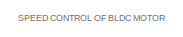
[diagram: root canvas - part 1/3, top left region]
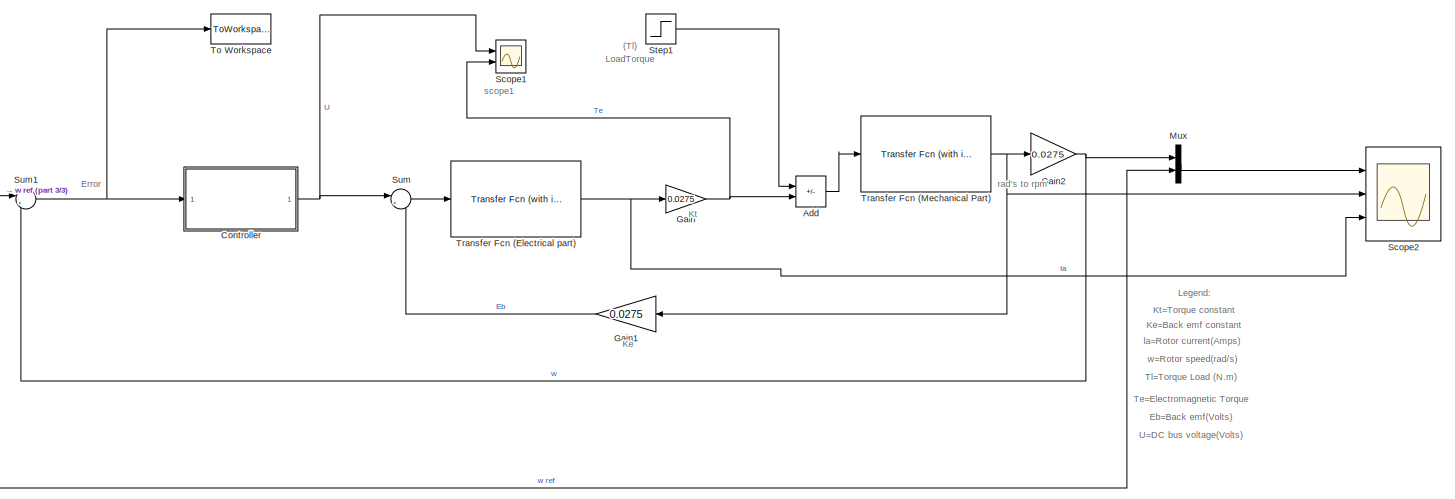
[diagram: root canvas - part 2/3, most of the canvas]
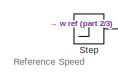
[diagram: root canvas - part 3/3, middle left region]
MODEL slx_33fdfa8906aa
KIND model
CONFIG AbsTol = auto
CONFIG EnableMultiTasking = off
CONFIG FixedStep = auto
CONFIG MaxStep = auto
CONFIG MinStep = auto
CONFIG RelTol = 1e-3
CONFIG SampleTimeConstraint = Unconstrained
CONFIG Solver = VariableStepAuto
CONFIG SolverName = VariableStepAuto
CONFIG StartTime = 0.0
CONFIG StopTime = 20.0
BLOCK [Sum] Add
  IconShape = rectangular
  Inputs = -+
  Ports = [2, 1]
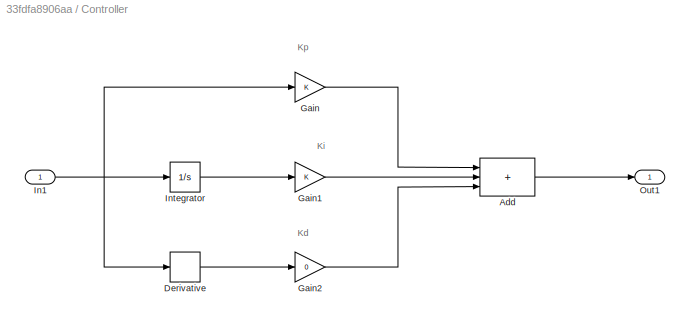
BLOCK [SubSystem] Controller
  Ports = [1, 1]
  RequestExecContextInheritance = off
BLOCK [Sum] Controller/Add
  IconShape = rectangular
  Inputs = +++
  Ports = [3, 1]
BLOCK [Derivative] Controller/Derivative
BLOCK [Gain] Controller/Gain
BLOCK [Gain] Controller/Gain1
BLOCK [Gain] Controller/Gain2
  Gain = 0
BLOCK [Inport] Controller/In1
BLOCK [Integrator] Controller/Integrator
  Ports = [1, 1]
BLOCK [Outport] Controller/Out1
BLOCK [Gain] Gain
  Gain = 0.0275
BLOCK [Gain] Gain1
  Gain = 0.0275
BLOCK [Gain] Gain2
  Gain = 0.0275
BLOCK [Mux] Mux
  DisplayOption = bar
  Inputs = 2
  Ports = [2, 1]
BLOCK [Scope] Scope1
  Floating = off
  NumInputPorts = 2
  Ports = [2]
  ScopeSpecificationString = Simulink.scopes.TimeScopeBlockCfg('CurrentConfiguration', extmgr.ConfigurationSet(extmgr.Configuration('Core','General UI',true),extmgr.Configuration('Core','Source UI',true),extmgr.Configuration('Sources','WiredSimulink',true,'DataLoggingVariableName','ScopeData1'),extmgr.Configuration('Visuals','Time Domain',true,'SerializedDisplays',{struct('MinYLimReal','-397.95929','MaxYLimReal','1246.47443',...<+2171ch>
BLOCK [Scope] Scope2
  Floating = off
  NumInputPorts = 3
  Ports = [3]
  ScopeSpecificationString = Simulink.scopes.TimeScopeBlockCfg('CurrentConfiguration', extmgr.ConfigurationSet(extmgr.Configuration('Core','General UI',true),extmgr.Configuration('Core','Source UI',true),extmgr.Configuration('Sources','WiredSimulink',true,'DataLoggingVariableName','ScopeData1'),extmgr.Configuration('Visuals','Time Domain',true,'SerializedDisplays',{struct('MinYLimReal','30.69248','MaxYLimReal','1693.17211','Y...<+2845ch>
BLOCK [Step] Step
  After = 1500
  SampleTime = 0
BLOCK [Step] Step1
  After = 10
  SampleTime = 0
  Time = 0.1
BLOCK [Sum] Sum
  Inputs = |+-
  Ports = [2, 1]
BLOCK [Sum] Sum1
  Inputs = |+-
  Ports = [2, 1]
BLOCK [ToWorkspace] To Workspace
  MaxDataPoints = inf
  Ports = [1]
  SampleTime = -1
  SaveFormat = Timeseries
  VariableName = simout
BLOCK [Reference] Transfer Fcn (Electrical part)  REF=simulink_extras/Additional
Linear/Transfer Fcn
(with initial states)
  Ports = [1, 1]
  SourceBlock = simulink_extras/Additional\nLinear/Transfer Fcn\n(with initial states)
  SourceProductBaseCode = SL
  SourceType = Transfer Function with Initial States
BLOCK [Reference] Transfer Fcn (Mechanical Part)  REF=simulink_extras/Additional
Linear/Transfer Fcn
(with initial states)
  Ports = [1, 1]
  SourceBlock = simulink_extras/Additional\nLinear/Transfer Fcn\n(with initial states)
  SourceProductBaseCode = SL
  SourceType = Transfer Function with Initial States
ANNOTATION (root): Eb=Back emf(Volts)
ANNOTATION (root): Ke=Back emf constant
ANNOTATION (root): Kt=Torque constant
ANNOTATION (root): Te=Electromagnetic Torque
ANNOTATION (root): Tl=Torque Load (N.m)
ANNOTATION (root): U=DC bus voltage(Volts)
ANNOTATION (root): la=Rotor current(Amps)
ANNOTATION (root): w=Rotor speed(rad/s)
ANNOTATION (root): Legend :
ANNOTATION (root): SPEED CONTROL OF BLDC MOTOR
ANNOTATION (root): Error
ANNOTATION (root): Ke
ANNOTATION (root): Kt
ANNOTATION (root): LoadTorque (Tl)
ANNOTATION (root): Reference Speed
ANNOTATION (root): rad's to rpm
ANNOTATION (root): scope1
ANNOTATION Controller: Kd
ANNOTATION Controller: Ki
ANNOTATION Controller: Kp
LINE Add:1 -> Transfer Fcn (Mechanical Part):1
LINE Controller/Add:1 -> Controller/Out1:1
LINE Controller/Derivative:1 -> Controller/Gain2:1
LINE Controller/Gain1:1 -> Controller/Add:2
LINE Controller/Gain2:1 -> Controller/Add:3
LINE Controller/Gain:1 -> Controller/Add:1
NET Controller/In1:1 -> Controller/Derivative:1, Controller/Gain:1, Controller/Integrator:1
LINE Controller/Integrator:1 -> Controller/Gain1:1
NET Controller:1 -> Scope1:1, Sum:1
LINE Gain1:1 -> Sum:2
NET Gain2:1 -> Mux:1, Sum1:2
NET Gain:1 -> Add:2, Scope1:2
LINE Mux:1 -> Scope2:1
LINE Step1:1 -> Add:1
NET Step:1 -> Mux:2, Sum1:1
NET Sum1:1 -> Controller:1, To Workspace:1
LINE Sum:1 -> Transfer Fcn (Electrical part):1
NET Transfer Fcn (Electrical part):1 -> Gain:1, Scope2:3
NET Transfer Fcn (Mechanical Part):1 -> Gain1:1, Gain2:1, Scope2:2
note: NET lines group one-source signal fan-out (src -> all destinations, sorted); 1:1 wires keep LINE
